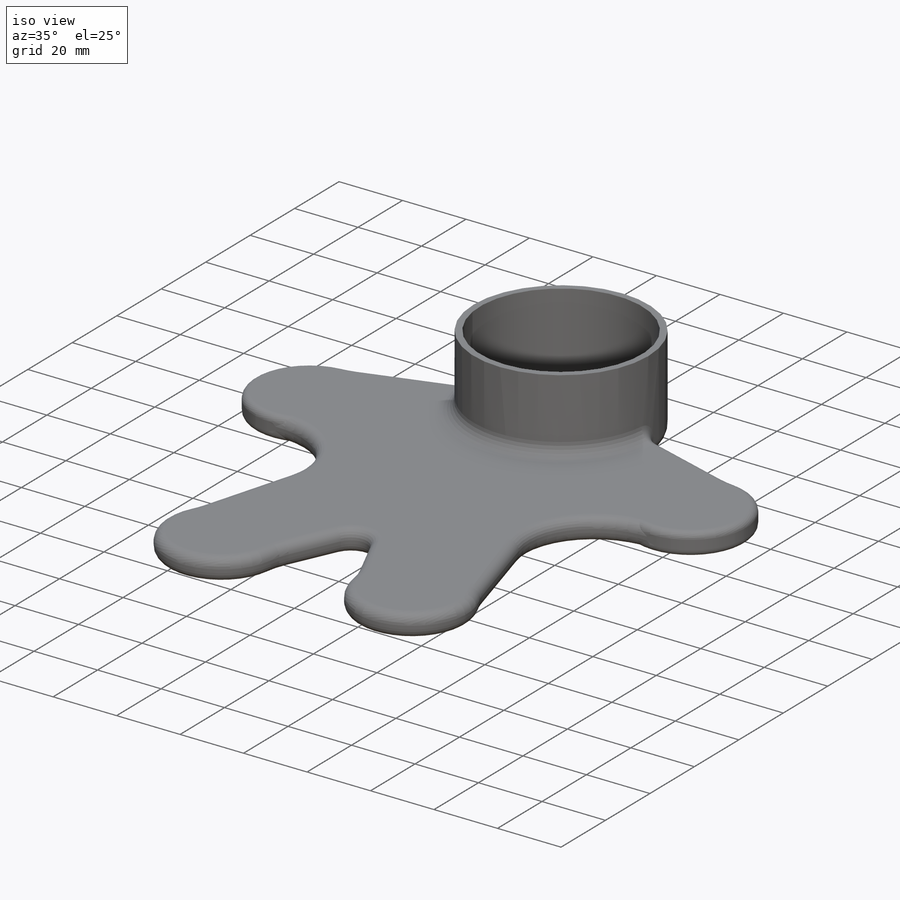
[diagram: iso view]
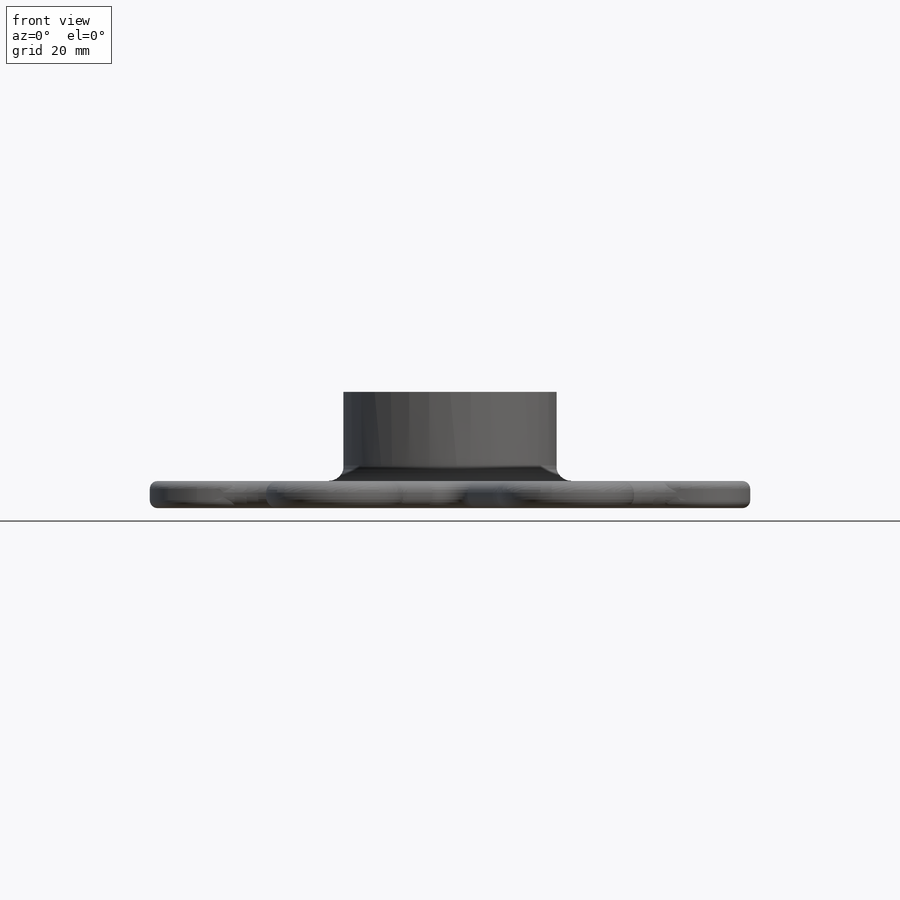
[diagram: front view]
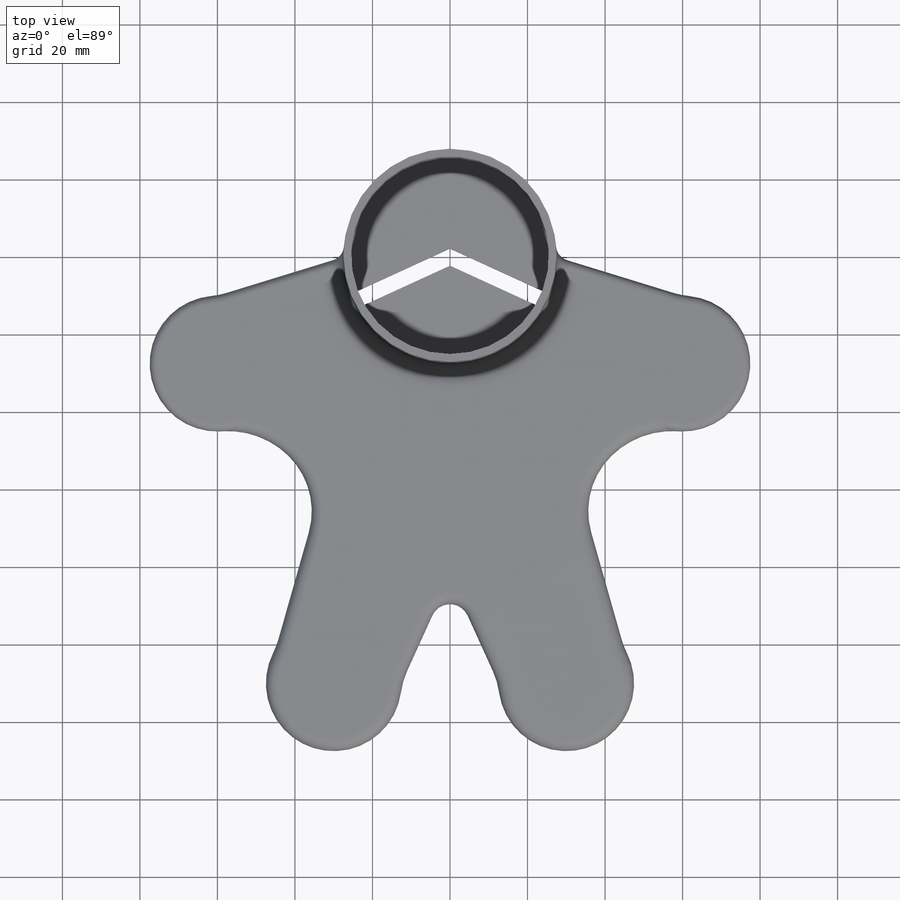
[diagram: top view]
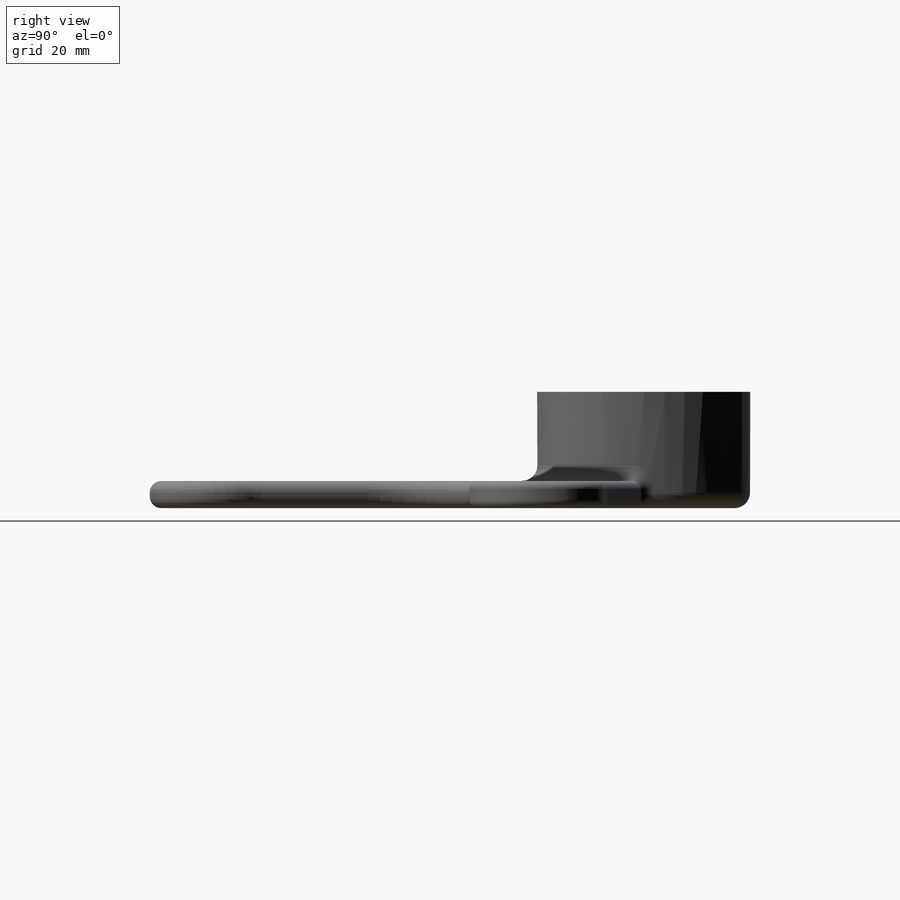
[diagram: right view]
SOLIDWORKS PART (.sldprt)
format: sldprt  version: not decoded by parser v0  size: 474,112 bytes
history: native  units: mm
features: sketch x4, fillet x4, plane x3, extrude x2, cut_extrude x2, material x1 (+10 scaffold rows collapsed)
feature tree (26):
  scaffold x10  (default folders/planes/origin — collapsed)
  material  "Material <sin especificar>"
  plane  "Alzado"
  plane  "Planta"
  plane  "Vista lateral"
  sketch  "Croquis1"  dims[c1.D1=55.0mm c1.D3=35.0mm c1.D4=22.0mm c1.D5=20.0mm c1.D6=20.0mm c1.D7=20.0mm c1.D8=20.0mm c1.D9=20.0mm c1.D10=5.0mm c2.D4=20.0mm c2.D11=20.0mm c2.D2=120.0mm]
  extrude  "Saliente-Extruir1"  Depth=7mm
  sketch  "Croquis2"
  extrude  "Saliente-Extruir4"  Depth=23mm
  sketch  "Croquis3"  dims[D1=51.0mm D2=2.0mm]
  cut_extrude  "Cortar-Extruir1"  Depth=27mm
  fillet  "Redondeo8"  Radius=3mm
  fillet  "Redondeo9"  Radius=2mm
  fillet  "Redondeo10"  Radius=4mm
  fillet  "Redondeo11"  Radius=4mm
  sketch  "Croquis6"  dims[D1=17.0mm D2=9.0mm D3=2.0mm D4=2.0mm]
  cut_extrude  "Cortar-Extruir3"  Depth=5mm
decode coverage: 11 of 12 modeling features carry decoded parameters
note: suppression state not decoded; provenance and decode notes live in map.json
